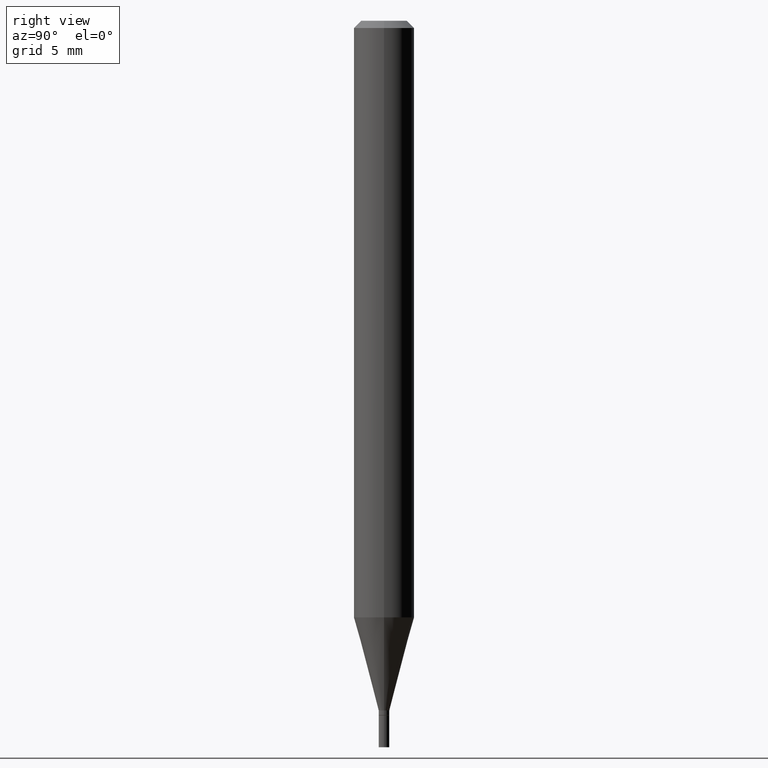
[diagram: clean part render]
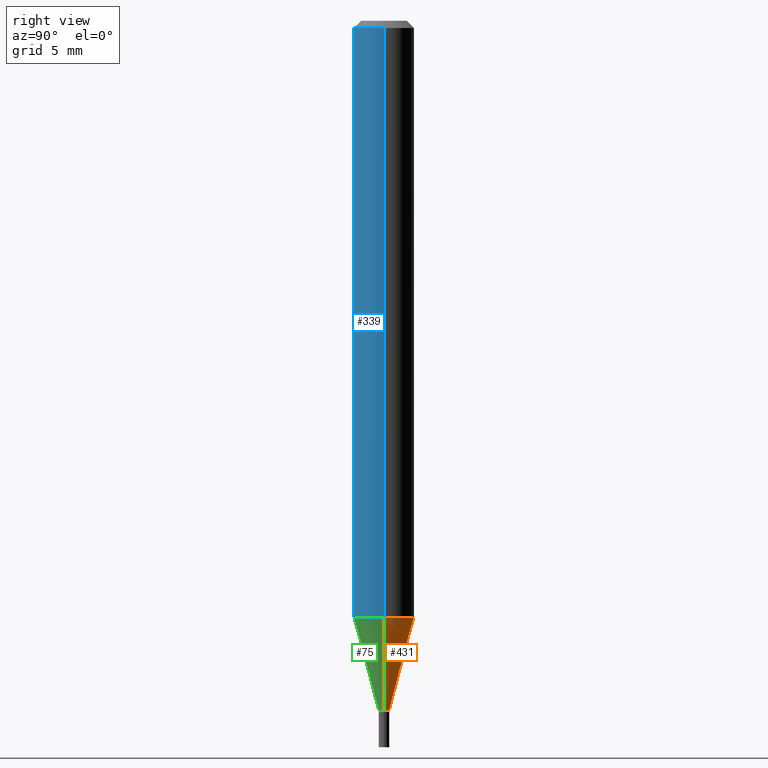
[diagram: same view with three faces highlighted in distinct colors, each labeled with its STEP entity id]
A machine part, right view with three faces highlighted in distinct colors.
Their STEP definitions:

[orange] entity #431 — the highlighted conical surface has half-angle 15 deg.
#11 = VERTEX_POINT ( 'NONE', #172 ) ;
#17 = LINE ( 'NONE', #444, #20 ) ;
#20 = VECTOR ( 'NONE', #238, 39.37007874015748143 ) ;
#34 = EDGE_CURVE ( 'NONE', #11, #212, #402, .T. ) ;
#35 = CARTESIAN_POINT ( 'NONE',  ( 3.482347580007634944E-29, -4.971869426512640168E-15, -1.424000000000000155 ) ) ;
#44 = VERTEX_POINT ( 'NONE', #287 ) ;
#60 = AXIS2_PLACEMENT_3D ( 'NONE', #167, #103, #245 ) ;
#78 = CARTESIAN_POINT ( 'NONE',  ( -0.01099999999999991956, -4.893709725579029078E-15, -1.424000000000000155 ) ) ;
#89 = CIRCLE ( 'NONE', #60, 0.06250000000000000000 ) ;
#94 = FACE_OUTER_BOUND ( 'NONE', #221, .T. ) ;
#98 = ORIENTED_EDGE ( 'NONE', *, *, #131, .F. ) ;
#103 = DIRECTION ( 'NONE',  ( -2.445468806185136597E-29, 3.491481338843145583E-15, 1.000000000000000000 ) ) ;
#108 = ORIENTED_EDGE ( 'NONE', *, *, #184, .T. ) ;
#125 = CARTESIAN_POINT ( 'NONE',  ( 3.482347580007634944E-29, -4.971869426512640168E-15, -1.424000000000000155 ) ) ;
#131 = EDGE_CURVE ( 'NONE', #314, #44, #17, .T. ) ;
#167 = CARTESIAN_POINT ( 'NONE',  ( 3.012326967607737433E-29, -4.300804560375218494E-15, -1.231799383410203452 ) ) ;
#169 = EDGE_CURVE ( 'NONE', #44, #212, #89, .T. ) ;
#172 = CARTESIAN_POINT ( 'NONE',  ( -0.01099999999999991956, -4.375212538052092478E-15, -1.424000000000000155 ) ) ;
#184 = EDGE_CURVE ( 'NONE', #314, #11, #187, .T. ) ;
#187 = CIRCLE ( 'NONE', #398, 0.01099999999999991956 ) ;
#206 = DIRECTION ( 'NONE',  ( -2.445468806185136597E-29, 3.491481338843145583E-15, 1.000000000000000000 ) ) ;
#212 = VERTEX_POINT ( 'NONE', #359 ) ;
#221 = EDGE_LOOP ( 'NONE', ( #108, #419, #281, #98 ) ) ;
#238 = DIRECTION ( 'NONE',  ( 0.2588190451025216832, 1.565188264969619798E-15, 0.9659258262890679791 ) ) ;
#245 = DIRECTION ( 'NONE',  ( 1.000000000000000000, -6.982962677686262766E-15, 0.000000000000000000 ) ) ;
#277 = VECTOR ( 'NONE', #292, 39.37007874015748143 ) ;
#281 = ORIENTED_EDGE ( 'NONE', *, *, #169, .F. ) ;
#287 = CARTESIAN_POINT ( 'NONE',  ( 0.06249999999999997918, -4.737239727730610164E-15, -1.231799383410203452 ) ) ;
#292 = DIRECTION ( 'NONE',  ( -0.2588190451025216832, 5.211531920934551831E-15, 0.9659258262890679791 ) ) ;
#295 = DIRECTION ( 'NONE',  ( 1.000000000000000000, -6.982962677686295898E-15, 0.000000000000000000 ) ) ;
#314 = VERTEX_POINT ( 'NONE', #342 ) ;
#331 = DIRECTION ( 'NONE',  ( -2.445468806185136597E-29, 3.491481338843145583E-15, 1.000000000000000000 ) ) ;
#342 = CARTESIAN_POINT ( 'NONE',  ( 0.01099999999999991956, -5.048682015967188692E-15, -1.424000000000000155 ) ) ;
#352 = DIRECTION ( 'NONE',  ( 1.000000000000000000, -6.982962677686295898E-15, 0.000000000000000000 ) ) ;
#359 = CARTESIAN_POINT ( 'NONE',  ( -0.06249999999999997918, -3.856715350525155878E-15, -1.231799383410203452 ) ) ;
#360 = AXIS2_PLACEMENT_3D ( 'NONE', #125, #206, #352 ) ;
#365 = CONICAL_SURFACE ( 'NONE', #360, 0.01099999999999991956, 0.2617993877991502960 ) ;
#398 = AXIS2_PLACEMENT_3D ( 'NONE', #35, #331, #295 ) ;
#402 = LINE ( 'NONE', #78, #277 ) ;
#419 = ORIENTED_EDGE ( 'NONE', *, *, #34, .T. ) ;
#431 = ADVANCED_FACE ( 'NONE', ( #94 ), #365, .T. ) ;
#444 = CARTESIAN_POINT ( 'NONE',  ( 0.01099999999999991956, -5.048682015967188692E-15, -1.424000000000000155 ) ) ;

[blue] entity #339 — the highlighted cylindrical surface (edge-blend (fillet) strip) has radius 1.5875 mm, axis along (-0, 0, 1).
#2 = CARTESIAN_POINT ( 'NONE',  ( -0.06250000000000000000, -1.732499180378870171E-15, -0.01499999999999999944 ) ) ;
#9 = CARTESIAN_POINT ( 'NONE',  ( -0.06250000000000000000, 4.440892098500626162E-16, -3.074334431409316114E-30 ) ) ;
#44 = VERTEX_POINT ( 'NONE', #287 ) ;
#48 = AXIS2_PLACEMENT_3D ( 'NONE', #227, #181, #346 ) ;
#77 = FACE_OUTER_BOUND ( 'NONE', #204, .T. ) ;
#123 = ORIENTED_EDGE ( 'NONE', *, *, #354, .T. ) ;
#124 = DIRECTION ( 'NONE',  ( -2.445468806185136597E-29, 3.491481338843145583E-15, 1.000000000000000000 ) ) ;
#129 = CARTESIAN_POINT ( 'NONE',  ( 0.06250000000000000000, -4.364351673553916694E-16, 3.047610484872459871E-30 ) ) ;
#153 = CIRCLE ( 'NONE', #205, 0.06250000000000000000 ) ;
#175 = CARTESIAN_POINT ( 'NONE',  ( 3.012326967607737433E-29, -4.300804560375218494E-15, -1.231799383410203452 ) ) ;
#181 = DIRECTION ( 'NONE',  ( -2.445468806185136597E-29, 3.491481338843145583E-15, 1.000000000000000000 ) ) ;
#198 = LINE ( 'NONE', #129, #408 ) ;
#204 = EDGE_LOOP ( 'NONE', ( #319, #123, #430, #420 ) ) ;
#205 = AXIS2_PLACEMENT_3D ( 'NONE', #175, #124, #235 ) ;
#212 = VERTEX_POINT ( 'NONE', #359 ) ;
#224 = LINE ( 'NONE', #9, #336 ) ;
#227 = CARTESIAN_POINT ( 'NONE',  ( 0.000000000000000000, 0.000000000000000000, 0.000000000000000000 ) ) ;
#229 = CARTESIAN_POINT ( 'NONE',  ( 3.668203209277705088E-31, -5.237222008264718399E-17, -0.01499999999999999944 ) ) ;
#231 = DIRECTION ( 'NONE',  ( -2.445468806185136877E-29, 3.491481338843145188E-15, 1.000000000000000000 ) ) ;
#235 = DIRECTION ( 'NONE',  ( 1.000000000000000000, -6.982962677686262766E-15, 0.000000000000000000 ) ) ;
#255 = CIRCLE ( 'NONE', #437, 0.06250000000000000000 ) ;
#260 = CARTESIAN_POINT ( 'NONE',  ( 0.06250000000000000000, -4.888073874380388472E-16, -0.01499999999999999944 ) ) ;
#272 = VERTEX_POINT ( 'NONE', #260 ) ;
#285 = VERTEX_POINT ( 'NONE', #2 ) ;
#287 = CARTESIAN_POINT ( 'NONE',  ( 0.06249999999999997918, -4.737239727730610164E-15, -1.231799383410203452 ) ) ;
#294 = EDGE_CURVE ( 'NONE', #285, #272, #255, .T. ) ;
#319 = ORIENTED_EDGE ( 'NONE', *, *, #428, .F. ) ;
#328 = EDGE_CURVE ( 'NONE', #44, #272, #198, .T. ) ;
#336 = VECTOR ( 'NONE', #344, 39.37007874015748143 ) ;
#339 = ADVANCED_FACE ( 'NONE', ( #77 ), #452, .T. ) ;
#344 = DIRECTION ( 'NONE',  ( -2.445468806185136877E-29, 3.491481338843145188E-15, 1.000000000000000000 ) ) ;
#346 = DIRECTION ( 'NONE',  ( 1.000000000000000000, -6.982962677686266711E-15, 4.876176775795935793E-29 ) ) ;
#354 = EDGE_CURVE ( 'NONE', #212, #44, #153, .T. ) ;
#359 = CARTESIAN_POINT ( 'NONE',  ( -0.06249999999999997918, -3.856715350525155878E-15, -1.231799383410203452 ) ) ;
#370 = DIRECTION ( 'NONE',  ( -2.445468806185136597E-29, 3.491481338843145583E-15, 1.000000000000000000 ) ) ;
#373 = DIRECTION ( 'NONE',  ( 1.000000000000000000, -6.982962677686266711E-15, 0.000000000000000000 ) ) ;
#408 = VECTOR ( 'NONE', #231, 39.37007874015748143 ) ;
#420 = ORIENTED_EDGE ( 'NONE', *, *, #294, .F. ) ;
#428 = EDGE_CURVE ( 'NONE', #212, #285, #224, .T. ) ;
#430 = ORIENTED_EDGE ( 'NONE', *, *, #328, .T. ) ;
#437 = AXIS2_PLACEMENT_3D ( 'NONE', #229, #370, #373 ) ;
#452 = CYLINDRICAL_SURFACE ( 'NONE', #48, 0.06250000000000000000 ) ;

[green] entity #75 — the highlighted conical surface has half-angle 15 deg.
#3 = FACE_OUTER_BOUND ( 'NONE', #423, .T. ) ;
#11 = VERTEX_POINT ( 'NONE', #172 ) ;
#17 = LINE ( 'NONE', #444, #20 ) ;
#20 = VECTOR ( 'NONE', #238, 39.37007874015748143 ) ;
#31 = DIRECTION ( 'NONE',  ( 1.000000000000000000, -6.982962677686295898E-15, 0.000000000000000000 ) ) ;
#32 = CONICAL_SURFACE ( 'NONE', #134, 0.01099999999999991956, 0.2617993877991502960 ) ;
#34 = EDGE_CURVE ( 'NONE', #11, #212, #402, .T. ) ;
#36 = CARTESIAN_POINT ( 'NONE',  ( 3.482347580007634944E-29, -4.971869426512640168E-15, -1.424000000000000155 ) ) ;
#43 = EDGE_CURVE ( 'NONE', #11, #314, #254, .T. ) ;
#44 = VERTEX_POINT ( 'NONE', #287 ) ;
#75 = ADVANCED_FACE ( 'NONE', ( #3 ), #32, .T. ) ;
#78 = CARTESIAN_POINT ( 'NONE',  ( -0.01099999999999991956, -4.893709725579029078E-15, -1.424000000000000155 ) ) ;
#88 = AXIS2_PLACEMENT_3D ( 'NONE', #36, #435, #31 ) ;
#106 = ORIENTED_EDGE ( 'NONE', *, *, #34, .F. ) ;
#124 = DIRECTION ( 'NONE',  ( -2.445468806185136597E-29, 3.491481338843145583E-15, 1.000000000000000000 ) ) ;
#131 = EDGE_CURVE ( 'NONE', #314, #44, #17, .T. ) ;
#134 = AXIS2_PLACEMENT_3D ( 'NONE', #379, #338, #265 ) ;
#153 = CIRCLE ( 'NONE', #205, 0.06250000000000000000 ) ;
#172 = CARTESIAN_POINT ( 'NONE',  ( -0.01099999999999991956, -4.375212538052092478E-15, -1.424000000000000155 ) ) ;
#175 = CARTESIAN_POINT ( 'NONE',  ( 3.012326967607737433E-29, -4.300804560375218494E-15, -1.231799383410203452 ) ) ;
#205 = AXIS2_PLACEMENT_3D ( 'NONE', #175, #124, #235 ) ;
#212 = VERTEX_POINT ( 'NONE', #359 ) ;
#234 = ORIENTED_EDGE ( 'NONE', *, *, #131, .T. ) ;
#235 = DIRECTION ( 'NONE',  ( 1.000000000000000000, -6.982962677686262766E-15, 0.000000000000000000 ) ) ;
#238 = DIRECTION ( 'NONE',  ( 0.2588190451025216832, 1.565188264969619798E-15, 0.9659258262890679791 ) ) ;
#246 = ORIENTED_EDGE ( 'NONE', *, *, #354, .F. ) ;
#254 = CIRCLE ( 'NONE', #88, 0.01099999999999991956 ) ;
#265 = DIRECTION ( 'NONE',  ( 1.000000000000000000, -6.982962677686295898E-15, 0.000000000000000000 ) ) ;
#277 = VECTOR ( 'NONE', #292, 39.37007874015748143 ) ;
#287 = CARTESIAN_POINT ( 'NONE',  ( 0.06249999999999997918, -4.737239727730610164E-15, -1.231799383410203452 ) ) ;
#292 = DIRECTION ( 'NONE',  ( -0.2588190451025216832, 5.211531920934551831E-15, 0.9659258262890679791 ) ) ;
#314 = VERTEX_POINT ( 'NONE', #342 ) ;
#338 = DIRECTION ( 'NONE',  ( -2.445468806185136597E-29, 3.491481338843145583E-15, 1.000000000000000000 ) ) ;
#342 = CARTESIAN_POINT ( 'NONE',  ( 0.01099999999999991956, -5.048682015967188692E-15, -1.424000000000000155 ) ) ;
#354 = EDGE_CURVE ( 'NONE', #212, #44, #153, .T. ) ;
#359 = CARTESIAN_POINT ( 'NONE',  ( -0.06249999999999997918, -3.856715350525155878E-15, -1.231799383410203452 ) ) ;
#361 = ORIENTED_EDGE ( 'NONE', *, *, #43, .T. ) ;
#379 = CARTESIAN_POINT ( 'NONE',  ( 3.482347580007634944E-29, -4.971869426512640168E-15, -1.424000000000000155 ) ) ;
#402 = LINE ( 'NONE', #78, #277 ) ;
#423 = EDGE_LOOP ( 'NONE', ( #106, #361, #234, #246 ) ) ;
#435 = DIRECTION ( 'NONE',  ( -2.445468806185136597E-29, 3.491481338843145583E-15, 1.000000000000000000 ) ) ;
#444 = CARTESIAN_POINT ( 'NONE',  ( 0.01099999999999991956, -5.048682015967188692E-15, -1.424000000000000155 ) ) ;